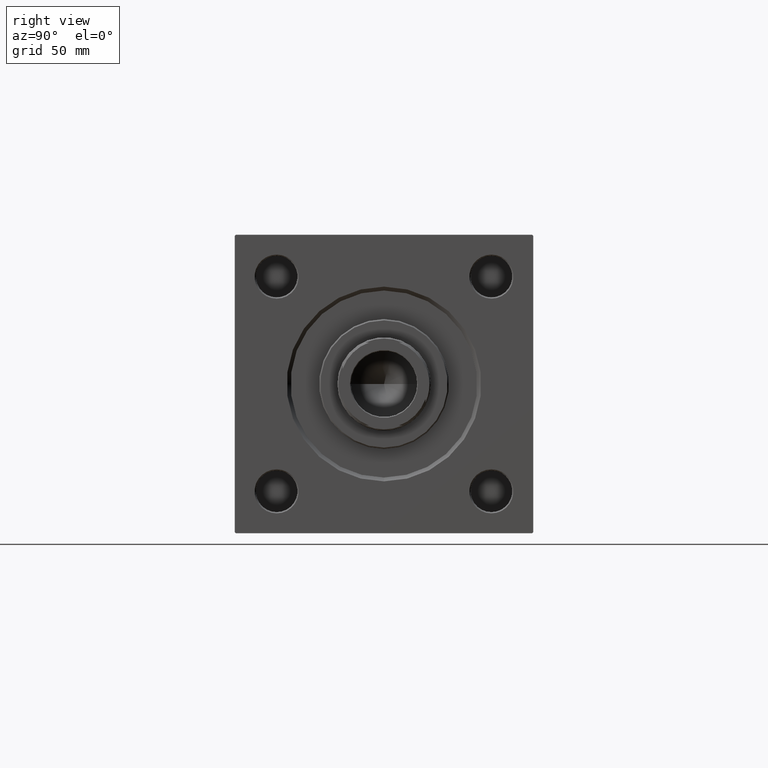
[diagram: clean part render]
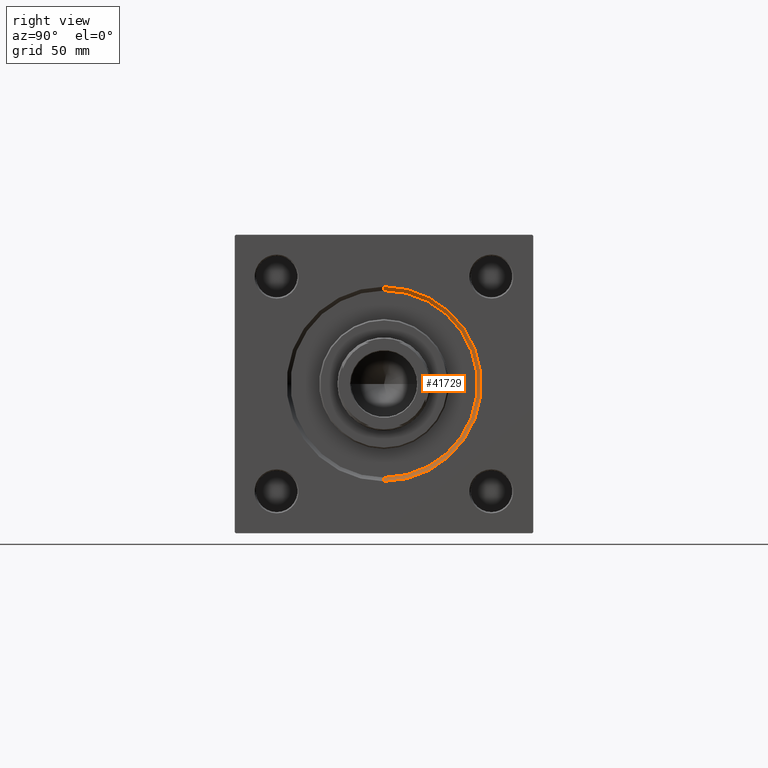
[diagram: same view with one face highlighted and labeled with its STEP entity id]
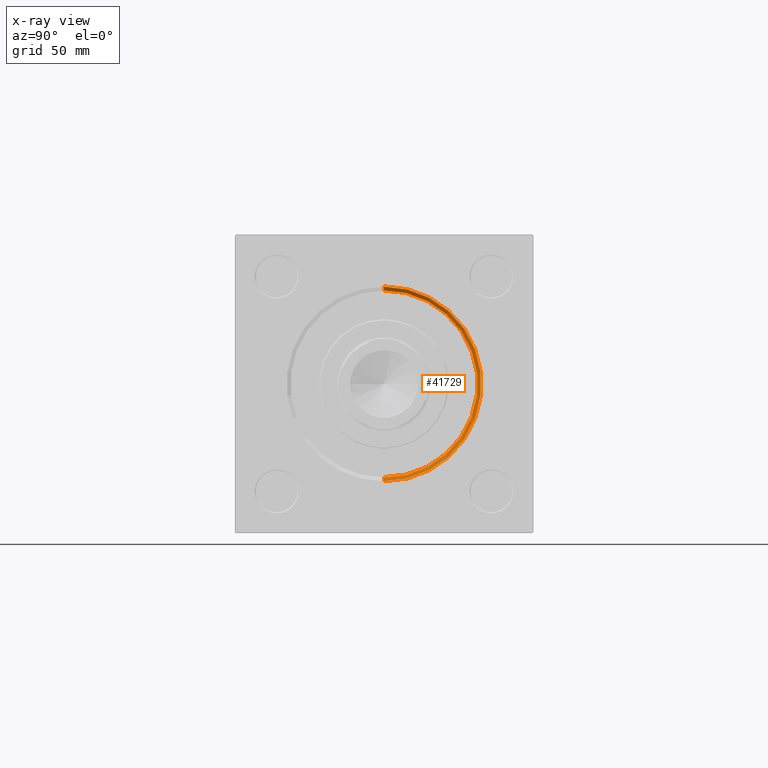
[diagram: x-ray of the same camera — body ghosted, the highlighted face saturated]
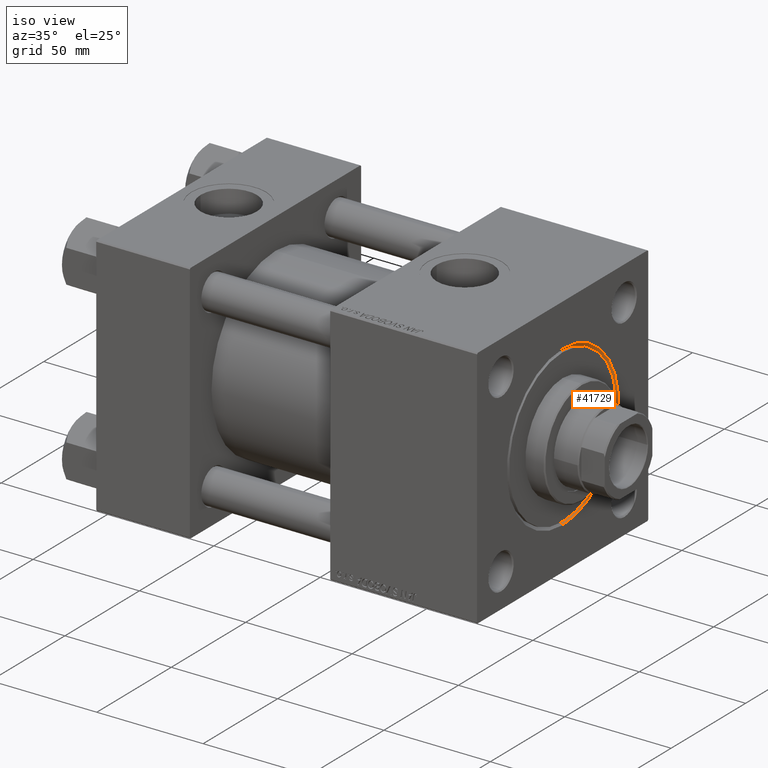
[diagram: same view with one face highlighted and labeled with its STEP entity id]
A machine part, right view. The second image highlights one B-rep face of the part: STEP entity #41729.
The next image is the same camera in x-ray: the body ghosted, the highlighted face saturated — about 0% of this face is hidden behind the body in this view.
A second angle (iso view) of the same face is appended — the face is thin or edge-on in the first view.
In plain terms, the highlighted conical surface has half-angle 45 deg.
Its self-contained STEP definition (entity closure, byte-faithful):
#1843 = ORIENTED_EDGE ( 'NONE', *, *, #5496, .F. ) ;
#5496 = EDGE_CURVE ( 'NONE', #44429, #36605, #39375, .T. ) ;
#6432 = CARTESIAN_POINT ( 'NONE',  ( 179.0000000000000000, 4.592425496802575156E-15, 37.50000000000000711 ) ) ;
#7812 = DIRECTION ( 'NONE',  ( 0.7071067811865524577, 8.659560562354873694E-17, 0.7071067811865426878 ) ) ;
#9446 = VERTEX_POINT ( 'NONE', #48327 ) ;
#9582 = DIRECTION ( 'NONE',  ( 0.7071067811865524577, 0.000000000000000000, -0.7071067811865426878 ) ) ;
#10135 = DIRECTION ( 'NONE',  ( 1.000000000000000000, 0.000000000000000000, 0.000000000000000000 ) ) ;
#11577 = CARTESIAN_POINT ( 'NONE',  ( 179.0000000000000000, 0.000000000000000000, 0.000000000000000000 ) ) ;
#13971 = CARTESIAN_POINT ( 'NONE',  ( 177.4999999999999716, 0.000000000000000000, 0.000000000000000000 ) ) ;
#17288 = AXIS2_PLACEMENT_3D ( 'NONE', #11577, #23086, #27191 ) ;
#17442 = EDGE_LOOP ( 'NONE', ( #28591, #41017, #29230, #1843 ) ) ;
#19059 = LINE ( 'NONE', #46990, #24979 ) ;
#19581 = EDGE_CURVE ( 'NONE', #9446, #44429, #19059, .T. ) ;
#21150 = CONICAL_SURFACE ( 'NONE', #50588, 36.00000000000000000, 0.7853981633974415066 ) ;
#23086 = DIRECTION ( 'NONE',  ( -1.000000000000000000, 0.000000000000000000, -0.000000000000000000 ) ) ;
#23648 = CIRCLE ( 'NONE', #41494, 36.00000000000000000 ) ;
#24979 = VECTOR ( 'NONE', #7812, 1000.000000000000000 ) ;
#26423 = VERTEX_POINT ( 'NONE', #35309 ) ;
#27191 = DIRECTION ( 'NONE',  ( 0.000000000000000000, 0.000000000000000000, 1.000000000000000000 ) ) ;
#28591 = ORIENTED_EDGE ( 'NONE', *, *, #19581, .F. ) ;
#29230 = ORIENTED_EDGE ( 'NONE', *, *, #43937, .T. ) ;
#31430 = LINE ( 'NONE', #47068, #49731 ) ;
#35309 = CARTESIAN_POINT ( 'NONE',  ( 177.4999999999999716, 0.000000000000000000, -36.00000000000000000 ) ) ;
#36605 = VERTEX_POINT ( 'NONE', #38496 ) ;
#38496 = CARTESIAN_POINT ( 'NONE',  ( 179.0000000000000000, 0.000000000000000000, -37.50000000000000711 ) ) ;
#39375 = CIRCLE ( 'NONE', #17288, 37.50000000000000711 ) ;
#41017 = ORIENTED_EDGE ( 'NONE', *, *, #42748, .F. ) ;
#41305 = DIRECTION ( 'NONE',  ( 1.000000000000000000, 0.000000000000000000, 0.000000000000000000 ) ) ;
#41357 = DIRECTION ( 'NONE',  ( 0.000000000000000000, 0.000000000000000000, -1.000000000000000000 ) ) ;
#41494 = AXIS2_PLACEMENT_3D ( 'NONE', #45405, #41305, #49504 ) ;
#41729 = ADVANCED_FACE ( 'NONE', ( #49061 ), #21150, .F. ) ;
#42748 = EDGE_CURVE ( 'NONE', #26423, #9446, #23648, .T. ) ;
#43937 = EDGE_CURVE ( 'NONE', #26423, #36605, #31430, .T. ) ;
#44429 = VERTEX_POINT ( 'NONE', #6432 ) ;
#45405 = CARTESIAN_POINT ( 'NONE',  ( 177.4999999999999716, 0.000000000000000000, 0.000000000000000000 ) ) ;
#46990 = CARTESIAN_POINT ( 'NONE',  ( 177.4999999999999716, 4.408728476930470856E-15, 36.00000000000000000 ) ) ;
#47068 = CARTESIAN_POINT ( 'NONE',  ( 177.4999999999999716, 0.000000000000000000, -36.00000000000000000 ) ) ;
#48327 = CARTESIAN_POINT ( 'NONE',  ( 177.4999999999999716, 4.408728476930470856E-15, 36.00000000000000000 ) ) ;
#49061 = FACE_OUTER_BOUND ( 'NONE', #17442, .T. ) ;
#49504 = DIRECTION ( 'NONE',  ( 0.000000000000000000, 0.000000000000000000, 1.000000000000000000 ) ) ;
#49731 = VECTOR ( 'NONE', #9582, 1000.000000000000000 ) ;
#50588 = AXIS2_PLACEMENT_3D ( 'NONE', #13971, #10135, #41357 ) ;